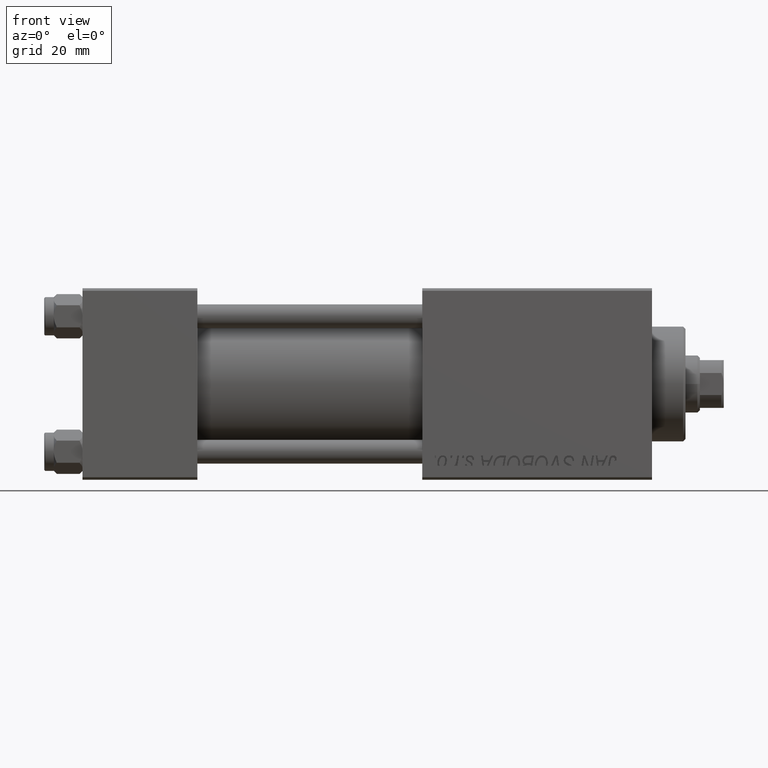
[diagram: clean part render]
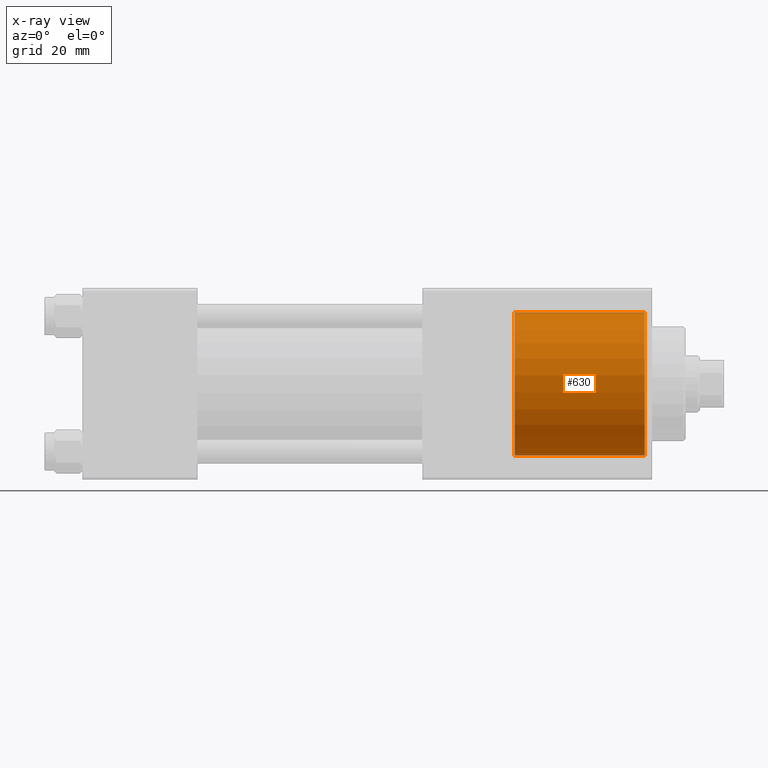
[diagram: x-ray — body ghosted, one internal face saturated and labeled with its STEP entity id]
A machine part, front view, then the same camera in x-ray: the body is ghosted and one INTERNAL B-rep face — a face not visible from any outside direction — is saturated and labeled: STEP entity #630.
In plain terms, the highlighted cylindrical surface (partial cylindrical patch) has radius 15 mm, axis along (1, 0, 0).
Its self-contained STEP definition (entity closure, byte-faithful):
#135 = CARTESIAN_POINT ( 'NONE',  ( 90.30000000000001137, 1.836970198721029589E-15, 15.00000000000000000 ) ) ;
#630 = ADVANCED_FACE ( 'NONE', ( #24126 ), #7934, .F. ) ;
#1319 = DIRECTION ( 'NONE',  ( 1.000000000000000000, 0.000000000000000000, 0.000000000000000000 ) ) ;
#1704 = EDGE_CURVE ( 'NONE', #23705, #33572, #48863, .T. ) ;
#3537 = CARTESIAN_POINT ( 'NONE',  ( 117.5000000000000000, 0.000000000000000000, -15.00000000000000000 ) ) ;
#5565 = CARTESIAN_POINT ( 'NONE',  ( 117.5000000000000000, 0.000000000000000000, 0.000000000000000000 ) ) ;
#5840 = CARTESIAN_POINT ( 'NONE',  ( 90.30000000000001137, 0.000000000000000000, -15.00000000000000000 ) ) ;
#7513 = ORIENTED_EDGE ( 'NONE', *, *, #7844, .T. ) ;
#7844 = EDGE_CURVE ( 'NONE', #33779, #47522, #10441, .T. ) ;
#7934 = CYLINDRICAL_SURFACE ( 'NONE', #21304, 15.00000000000000000 ) ;
#9807 = EDGE_LOOP ( 'NONE', ( #20051, #41690, #7513, #10054 ) ) ;
#10054 = ORIENTED_EDGE ( 'NONE', *, *, #17409, .F. ) ;
#10128 = VECTOR ( 'NONE', #31463, 1000.000000000000000 ) ;
#10441 = CIRCLE ( 'NONE', #39686, 15.00000000000000000 ) ;
#16029 = CARTESIAN_POINT ( 'NONE',  ( 90.30000000000001137, 1.836970198721029589E-15, 15.00000000000000000 ) ) ;
#16531 = DIRECTION ( 'NONE',  ( 0.000000000000000000, 0.000000000000000000, -1.000000000000000000 ) ) ;
#17255 = DIRECTION ( 'NONE',  ( 1.000000000000000000, -0.000000000000000000, -0.000000000000000000 ) ) ;
#17409 = EDGE_CURVE ( 'NONE', #33572, #47522, #18018, .T. ) ;
#18018 = LINE ( 'NONE', #5840, #39068 ) ;
#19843 = DIRECTION ( 'NONE',  ( 1.000000000000000000, -0.000000000000000000, -0.000000000000000000 ) ) ;
#20051 = ORIENTED_EDGE ( 'NONE', *, *, #1704, .F. ) ;
#21304 = AXIS2_PLACEMENT_3D ( 'NONE', #35780, #19843, #16531 ) ;
#23705 = VERTEX_POINT ( 'NONE', #135 ) ;
#23890 = CARTESIAN_POINT ( 'NONE',  ( 90.30000000000001137, 0.000000000000000000, 0.000000000000000000 ) ) ;
#24126 = FACE_OUTER_BOUND ( 'NONE', #9807, .T. ) ;
#31463 = DIRECTION ( 'NONE',  ( 1.000000000000000000, -0.000000000000000000, -0.000000000000000000 ) ) ;
#32428 = DIRECTION ( 'NONE',  ( 1.000000000000000000, 0.000000000000000000, 0.000000000000000000 ) ) ;
#32726 = CARTESIAN_POINT ( 'NONE',  ( 117.5000000000000000, 1.836970198721029589E-15, 15.00000000000000000 ) ) ;
#33572 = VERTEX_POINT ( 'NONE', #44971 ) ;
#33779 = VERTEX_POINT ( 'NONE', #32726 ) ;
#35288 = LINE ( 'NONE', #16029, #10128 ) ;
#35780 = CARTESIAN_POINT ( 'NONE',  ( 90.30000000000001137, 0.000000000000000000, 0.000000000000000000 ) ) ;
#36497 = DIRECTION ( 'NONE',  ( 0.000000000000000000, 0.000000000000000000, 1.000000000000000000 ) ) ;
#36748 = AXIS2_PLACEMENT_3D ( 'NONE', #23890, #1319, #43167 ) ;
#39068 = VECTOR ( 'NONE', #17255, 1000.000000000000000 ) ;
#39686 = AXIS2_PLACEMENT_3D ( 'NONE', #5565, #32428, #36497 ) ;
#41690 = ORIENTED_EDGE ( 'NONE', *, *, #45260, .T. ) ;
#43167 = DIRECTION ( 'NONE',  ( 0.000000000000000000, 0.000000000000000000, -1.000000000000000000 ) ) ;
#44971 = CARTESIAN_POINT ( 'NONE',  ( 90.30000000000001137, 0.000000000000000000, -15.00000000000000000 ) ) ;
#45260 = EDGE_CURVE ( 'NONE', #23705, #33779, #35288, .T. ) ;
#47522 = VERTEX_POINT ( 'NONE', #3537 ) ;
#48863 = CIRCLE ( 'NONE', #36748, 15.00000000000000000 ) ;